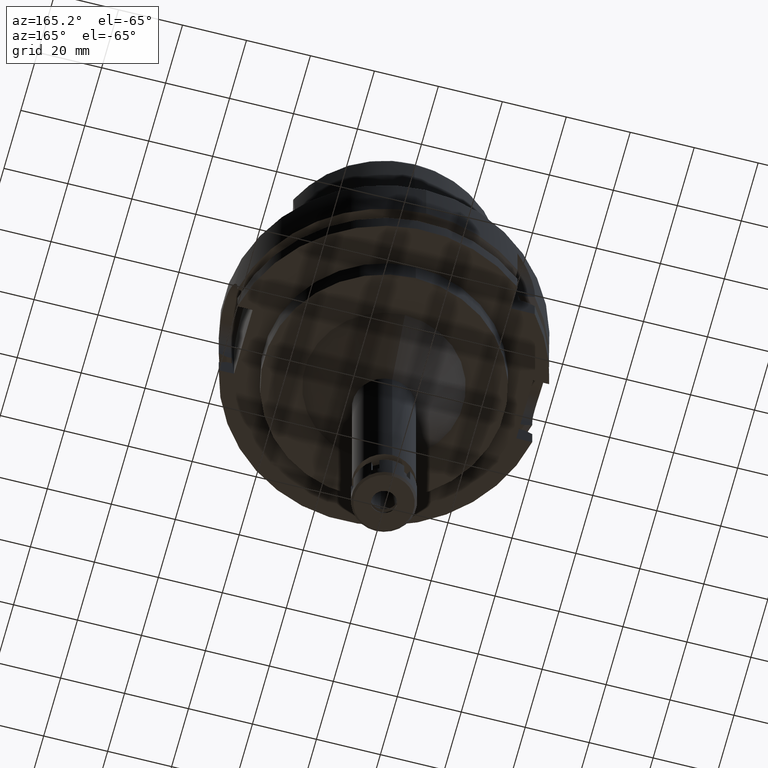
[diagram: clean part render]
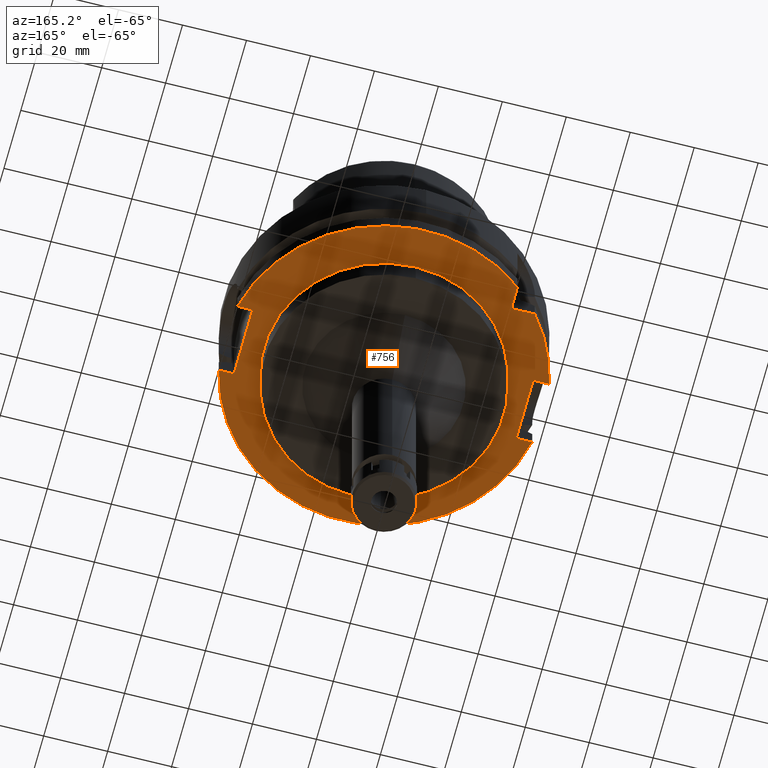
[diagram: same view with one face highlighted and labeled with its STEP entity id]
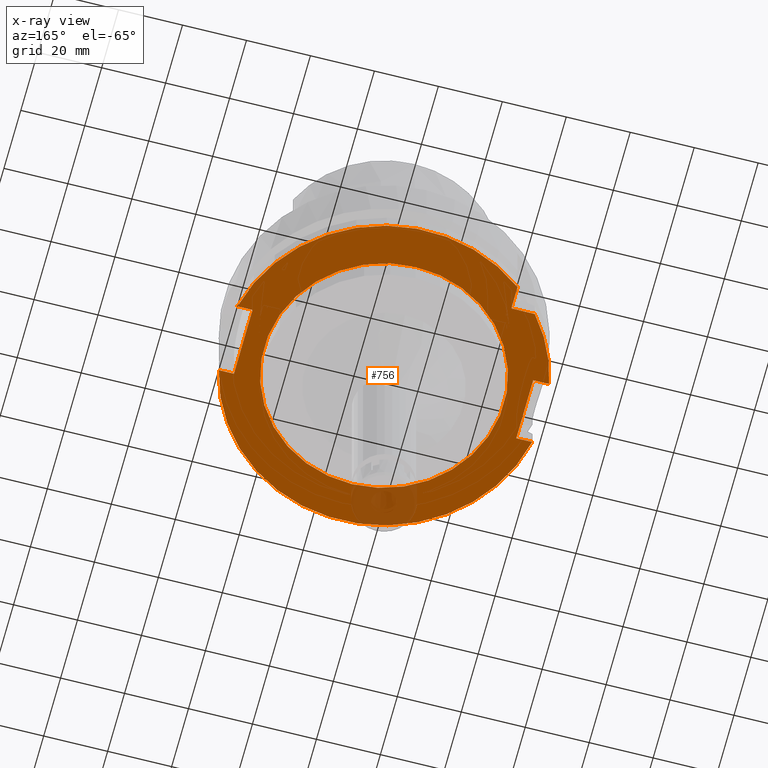
[diagram: x-ray of the same camera — body ghosted, the highlighted face saturated]
A machine part, auxiliary view. The second image highlights one B-rep face of the part: STEP entity #756.
The next image is the same camera in x-ray: the body ghosted, the highlighted face saturated — about 8% of this face is hidden behind the body in this view.
In plain terms, the highlighted planar face has unit normal (0, 0, 1).
Its self-contained STEP definition (entity closure, byte-faithful):
#34 = AXIS2_PLACEMENT_3D ( 'NONE', #675, #2073, #180 ) ;
#36 = VECTOR ( 'NONE', #2579, 1000.000000000000000 ) ;
#65 = ORIENTED_EDGE ( 'NONE', *, *, #4001, .T. ) ;
#67 = CARTESIAN_POINT ( 'NONE',  ( -31.50000000000000000, 31.50000000000000000, -29.00000000000000000 ) ) ;
#95 = VERTEX_POINT ( 'NONE', #1190 ) ;
#180 = DIRECTION ( 'NONE',  ( 0.0000000000000000000, 1.000000000000000000, 0.0000000000000000000 ) ) ;
#259 = LINE ( 'NONE', #4043, #1886 ) ;
#290 = EDGE_CURVE ( 'NONE', #5295, #2194, #5232, .T. ) ;
#355 = LINE ( 'NONE', #1265, #3017 ) ;
#407 = EDGE_CURVE ( 'NONE', #885, #3595, #2994, .T. ) ;
#422 = CARTESIAN_POINT ( 'NONE',  ( 44.00000000000000000, 11.00000000000000000, -29.00000000000000000 ) ) ;
#568 = CARTESIAN_POINT ( 'NONE',  ( -31.50000000000000000, 31.50000000000000000, -29.00000000000000000 ) ) ;
#675 = CARTESIAN_POINT ( 'NONE',  ( 0.0000000000000000000, 0.0000000000000000000, -29.00000000000000000 ) ) ;
#720 = CIRCLE ( 'NONE', #1845, 37.50000000000000000 ) ;
#756 = ADVANCED_FACE ( 'NONE', ( #3297, #6058 ), #2306, .F. ) ;
#861 = VERTEX_POINT ( 'NONE', #2866 ) ;
#885 = VERTEX_POINT ( 'NONE', #568 ) ;
#1120 = CARTESIAN_POINT ( 'NONE',  ( -31.50000000000000000, 38.82975663071000128, -29.00000000000000000 ) ) ;
#1170 = CARTESIAN_POINT ( 'NONE',  ( -48.98979485565999425, 10.00000000000000000, -29.00000000000000000 ) ) ;
#1190 = CARTESIAN_POINT ( 'NONE',  ( 44.00000000000000000, -11.00000000000000000, -29.00000000000000000 ) ) ;
#1193 = CARTESIAN_POINT ( 'NONE',  ( 48.77499359303000404, -11.00000000000000000, -29.00000000000000000 ) ) ;
#1238 = DIRECTION ( 'NONE',  ( 0.0000000000000000000, 0.0000000000000000000, 1.000000000000000000 ) ) ;
#1265 = CARTESIAN_POINT ( 'NONE',  ( -44.00000000000000000, -10.00000000000000000, -29.00000000000000000 ) ) ;
#1271 = ORIENTED_EDGE ( 'NONE', *, *, #5818, .T. ) ;
#1316 = VERTEX_POINT ( 'NONE', #1120 ) ;
#1334 = EDGE_CURVE ( 'NONE', #885, #1316, #4919, .T. ) ;
#1413 = CARTESIAN_POINT ( 'NONE',  ( -48.98979485565999425, -10.00000000000000000, -29.00000000000000000 ) ) ;
#1495 = VERTEX_POINT ( 'NONE', #1413 ) ;
#1507 = ORIENTED_EDGE ( 'NONE', *, *, #2746, .F. ) ;
#1610 = DIRECTION ( 'NONE',  ( -1.000000000000000000, -4.627973610177000155E-14, 0.0000000000000000000 ) ) ;
#1669 = EDGE_LOOP ( 'NONE', ( #1507, #65, #4472, #3040, #3522, #5231, #2468, #1271, #4443, #2908, #3135 ) ) ;
#1670 = LINE ( 'NONE', #1193, #4226 ) ;
#1691 = CARTESIAN_POINT ( 'NONE',  ( 48.77499359303000404, -11.00000000000000000, -29.00000000000000000 ) ) ;
#1709 = CIRCLE ( 'NONE', #2414, 50.00000000000000711 ) ;
#1767 = CARTESIAN_POINT ( 'NONE',  ( 48.77499359303000404, 11.00000000000000000, -29.00000000000000000 ) ) ;
#1775 = CARTESIAN_POINT ( 'NONE',  ( 0.0000000000000000000, 0.0000000000000000000, -29.00000000000000000 ) ) ;
#1803 = EDGE_CURVE ( 'NONE', #1495, #5023, #3857, .T. ) ;
#1845 = AXIS2_PLACEMENT_3D ( 'NONE', #4194, #2199, #4098 ) ;
#1886 = VECTOR ( 'NONE', #1610, 1000.000000000000000 ) ;
#1974 = AXIS2_PLACEMENT_3D ( 'NONE', #4209, #2287, #6066 ) ;
#1991 = EDGE_CURVE ( 'NONE', #861, #1495, #259, .T. ) ;
#1995 = LINE ( 'NONE', #2992, #4206 ) ;
#2073 = DIRECTION ( 'NONE',  ( 0.0000000000000000000, 0.0000000000000000000, 1.000000000000000000 ) ) ;
#2076 = VERTEX_POINT ( 'NONE', #1170 ) ;
#2194 = VERTEX_POINT ( 'NONE', #3786 ) ;
#2199 = DIRECTION ( 'NONE',  ( 0.0000000000000000000, 0.0000000000000000000, -1.000000000000000000 ) ) ;
#2269 = LINE ( 'NONE', #5084, #2919 ) ;
#2287 = DIRECTION ( 'NONE',  ( 0.0000000000000000000, 0.0000000000000000000, 1.000000000000000000 ) ) ;
#2306 = PLANE ( 'NONE',  #5028 ) ;
#2414 = AXIS2_PLACEMENT_3D ( 'NONE', #3596, #1238, #5966 ) ;
#2468 = ORIENTED_EDGE ( 'NONE', *, *, #3572, .T. ) ;
#2541 = CARTESIAN_POINT ( 'NONE',  ( -44.00000000000000000, 10.00000000000000000, -29.00000000000000000 ) ) ;
#2579 = DIRECTION ( 'NONE',  ( -1.000000000000000000, 4.627973610177000155E-14, 0.0000000000000000000 ) ) ;
#2638 = DIRECTION ( 'NONE',  ( -1.000000000000000000, -1.711257052401000108E-14, 0.0000000000000000000 ) ) ;
#2721 = VERTEX_POINT ( 'NONE', #2541 ) ;
#2746 = EDGE_CURVE ( 'NONE', #4850, #1316, #3029, .T. ) ;
#2801 = DIRECTION ( 'NONE',  ( 0.0000000000000000000, 0.0000000000000000000, 1.000000000000000000 ) ) ;
#2866 = CARTESIAN_POINT ( 'NONE',  ( -44.00000000000000000, -10.00000000000000000, -29.00000000000000000 ) ) ;
#2908 = ORIENTED_EDGE ( 'NONE', *, *, #407, .F. ) ;
#2919 = VECTOR ( 'NONE', #4631, 1000.000000000000000 ) ;
#2992 = CARTESIAN_POINT ( 'NONE',  ( 48.77499359303000404, 11.00000000000000000, -29.00000000000000000 ) ) ;
#2994 = LINE ( 'NONE', #4883, #4649 ) ;
#3017 = VECTOR ( 'NONE', #3562, 1000.000000000000000 ) ;
#3020 = EDGE_CURVE ( 'NONE', #3595, #2076, #1709, .T. ) ;
#3029 = CIRCLE ( 'NONE', #34, 50.00000000000000000 ) ;
#3040 = ORIENTED_EDGE ( 'NONE', *, *, #5820, .F. ) ;
#3045 = CARTESIAN_POINT ( 'NONE',  ( -44.00000000000000000, 10.00000000000000000, -29.00000000000000000 ) ) ;
#3135 = ORIENTED_EDGE ( 'NONE', *, *, #1334, .T. ) ;
#3214 = DIRECTION ( 'NONE',  ( 0.0000000000000000000, -1.000000000000000000, 0.0000000000000000000 ) ) ;
#3236 = CARTESIAN_POINT ( 'NONE',  ( -38.82975663071000128, 31.50000000000000000, -29.00000000000000000 ) ) ;
#3297 = FACE_OUTER_BOUND ( 'NONE', #1669, .T. ) ;
#3394 = DIRECTION ( 'NONE',  ( -1.000000000000000000, -4.798503851105999980E-14, 0.0000000000000000000 ) ) ;
#3522 = ORIENTED_EDGE ( 'NONE', *, *, #1803, .F. ) ;
#3562 = DIRECTION ( 'NONE',  ( 0.0000000000000000000, 1.000000000000000000, 0.0000000000000000000 ) ) ;
#3565 = EDGE_LOOP ( 'NONE', ( #3718, #4688 ) ) ;
#3572 = EDGE_CURVE ( 'NONE', #861, #2721, #355, .T. ) ;
#3595 = VERTEX_POINT ( 'NONE', #3236 ) ;
#3596 = CARTESIAN_POINT ( 'NONE',  ( 0.0000000000000000000, 0.0000000000000000000, -29.00000000000000000 ) ) ;
#3718 = ORIENTED_EDGE ( 'NONE', *, *, #5968, .F. ) ;
#3734 = CARTESIAN_POINT ( 'NONE',  ( 0.0000000000000000000, -37.50000000000000000, -29.00000000000000000 ) ) ;
#3786 = CARTESIAN_POINT ( 'NONE',  ( 0.0000000000000000000, 37.50000000000000000, -29.00000000000000000 ) ) ;
#3857 = CIRCLE ( 'NONE', #1974, 50.00000000000000000 ) ;
#3872 = DIRECTION ( 'NONE',  ( 4.798503851105999980E-14, 1.000000000000000000, 0.0000000000000000000 ) ) ;
#3928 = EDGE_CURVE ( 'NONE', #5387, #95, #2269, .T. ) ;
#4001 = EDGE_CURVE ( 'NONE', #4850, #5387, #1995, .T. ) ;
#4043 = CARTESIAN_POINT ( 'NONE',  ( -44.00000000000000000, -10.00000000000000000, -29.00000000000000000 ) ) ;
#4098 = DIRECTION ( 'NONE',  ( 0.0000000000000000000, 1.000000000000000000, 0.0000000000000000000 ) ) ;
#4142 = AXIS2_PLACEMENT_3D ( 'NONE', #5656, #4706, #3214 ) ;
#4194 = CARTESIAN_POINT ( 'NONE',  ( 0.0000000000000000000, 0.0000000000000000000, -29.00000000000000000 ) ) ;
#4206 = VECTOR ( 'NONE', #5371, 1000.000000000000000 ) ;
#4209 = CARTESIAN_POINT ( 'NONE',  ( 0.0000000000000000000, 0.0000000000000000000, -29.00000000000000000 ) ) ;
#4226 = VECTOR ( 'NONE', #2638, 1000.000000000000000 ) ;
#4443 = ORIENTED_EDGE ( 'NONE', *, *, #3020, .F. ) ;
#4472 = ORIENTED_EDGE ( 'NONE', *, *, #3928, .T. ) ;
#4631 = DIRECTION ( 'NONE',  ( 0.0000000000000000000, -1.000000000000000000, 0.0000000000000000000 ) ) ;
#4649 = VECTOR ( 'NONE', #3394, 1000.000000000000000 ) ;
#4688 = ORIENTED_EDGE ( 'NONE', *, *, #290, .F. ) ;
#4706 = DIRECTION ( 'NONE',  ( 0.0000000000000000000, 0.0000000000000000000, -1.000000000000000000 ) ) ;
#4850 = VERTEX_POINT ( 'NONE', #1767 ) ;
#4879 = LINE ( 'NONE', #3045, #36 ) ;
#4883 = CARTESIAN_POINT ( 'NONE',  ( -31.50000000000000000, 31.50000000000000000, -29.00000000000000000 ) ) ;
#4919 = LINE ( 'NONE', #67, #4937 ) ;
#4937 = VECTOR ( 'NONE', #3872, 1000.000000000000000 ) ;
#5023 = VERTEX_POINT ( 'NONE', #1691 ) ;
#5028 = AXIS2_PLACEMENT_3D ( 'NONE', #1775, #2801, #5063 ) ;
#5063 = DIRECTION ( 'NONE',  ( 1.000000000000000000, 0.0000000000000000000, 0.0000000000000000000 ) ) ;
#5084 = CARTESIAN_POINT ( 'NONE',  ( 44.00000000000000000, 11.00000000000000000, -29.00000000000000000 ) ) ;
#5231 = ORIENTED_EDGE ( 'NONE', *, *, #1991, .F. ) ;
#5232 = CIRCLE ( 'NONE', #4142, 37.50000000000000000 ) ;
#5295 = VERTEX_POINT ( 'NONE', #3734 ) ;
#5371 = DIRECTION ( 'NONE',  ( -1.000000000000000000, 1.785659532940000023E-14, 0.0000000000000000000 ) ) ;
#5387 = VERTEX_POINT ( 'NONE', #422 ) ;
#5656 = CARTESIAN_POINT ( 'NONE',  ( 0.0000000000000000000, 0.0000000000000000000, -29.00000000000000000 ) ) ;
#5818 = EDGE_CURVE ( 'NONE', #2721, #2076, #4879, .T. ) ;
#5820 = EDGE_CURVE ( 'NONE', #5023, #95, #1670, .T. ) ;
#5966 = DIRECTION ( 'NONE',  ( -0.7765951326141738997, 0.6299999999999789102, 0.0000000000000000000 ) ) ;
#5968 = EDGE_CURVE ( 'NONE', #2194, #5295, #720, .T. ) ;
#6058 = FACE_BOUND ( 'NONE', #3565, .T. ) ;
#6066 = DIRECTION ( 'NONE',  ( 0.0000000000000000000, -1.000000000000000000, 0.0000000000000000000 ) ) ;